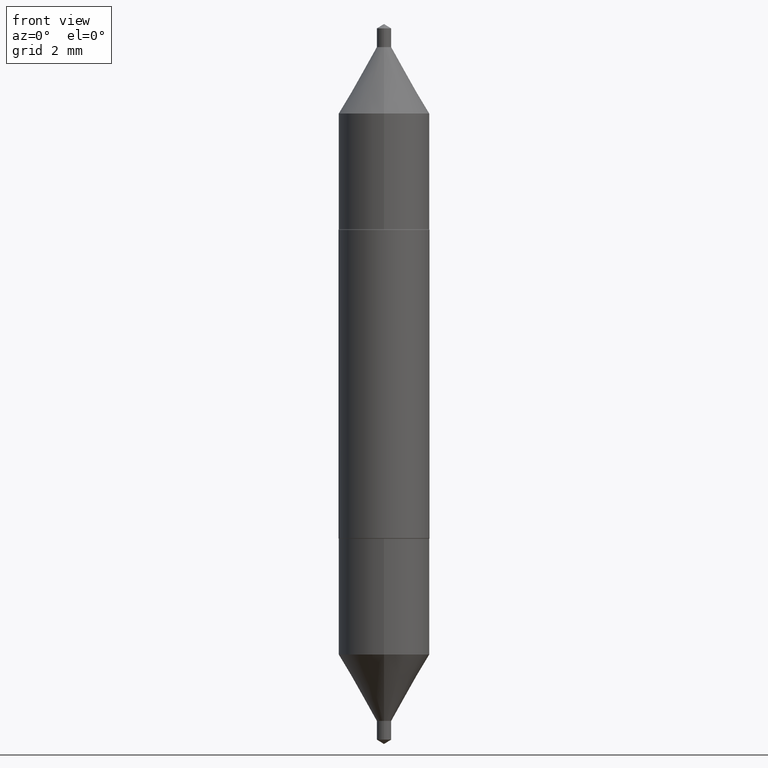
[diagram: clean part render]
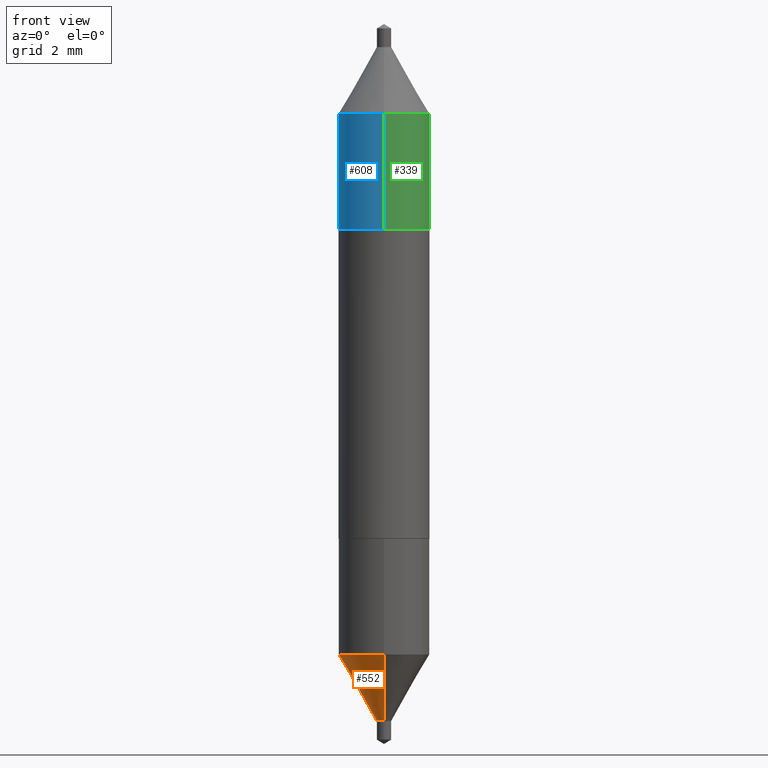
[diagram: same view with three faces highlighted in distinct colors, each labeled with its STEP entity id]
A machine part, front view with three faces highlighted in distinct colors.
Their STEP definitions:

[orange] entity #552 — the highlighted conical surface has half-angle 30 deg.
#17 = VERTEX_POINT ( 'NONE', #24 ) ;
#23 = CARTESIAN_POINT ( 'NONE',  ( 1.064338349321979233E-29, -1.682341261709817367E-15, -0.4584999999999999631 ) ) ;
#24 = CARTESIAN_POINT ( 'NONE',  ( 4.405364961712693597E-16, 0.06199999999999874362, -0.3681735503852819336 ) ) ;
#29 = CONICAL_SURFACE ( 'NONE', #102, 0.009850000000000079178, 0.5235987755982925984 ) ;
#59 = VERTEX_POINT ( 'NONE', #559 ) ;
#65 = EDGE_CURVE ( 'NONE', #364, #59, #272, .T. ) ;
#95 = CARTESIAN_POINT ( 'NONE',  ( 1.064338349321979233E-29, -1.682341261709817367E-15, -0.4584999999999999631 ) ) ;
#102 = AXIS2_PLACEMENT_3D ( 'NONE', #23, #138, #463 ) ;
#136 = DIRECTION ( 'NONE',  ( -2.215996635564548441E-29, 3.820098547916675301E-15, 1.000000000000000000 ) ) ;
#138 = DIRECTION ( 'NONE',  ( -2.215996635564548441E-29, 3.820098547916675301E-15, 1.000000000000000000 ) ) ;
#144 = LINE ( 'NONE', #353, #558 ) ;
#190 = FACE_OUTER_BOUND ( 'NONE', #549, .T. ) ;
#194 = EDGE_CURVE ( 'NONE', #17, #391, #448, .T. ) ;
#213 = ORIENTED_EDGE ( 'NONE', *, *, #402, .F. ) ;
#272 = CIRCLE ( 'NONE', #345, 0.009850000000000079178 ) ;
#275 = CARTESIAN_POINT ( 'NONE',  ( 6.998845947238172148E-17, 0.009849999999998398231, -0.4585000000000000187 ) ) ;
#288 = LINE ( 'NONE', #447, #567 ) ;
#295 = DIRECTION ( 'NONE',  ( -6.982962677686267499E-15, -1.000000000000000000, 6.933624349401627755E-15 ) ) ;
#345 = AXIS2_PLACEMENT_3D ( 'NONE', #95, #136, #295 ) ;
#352 = DIRECTION ( 'NONE',  ( -2.215996635564548441E-29, 3.820098547916675301E-15, 1.000000000000000000 ) ) ;
#353 = CARTESIAN_POINT ( 'NONE',  ( -6.878218237519963550E-17, -0.009850000000001761860, -0.4584999999999999076 ) ) ;
#354 = DIRECTION ( 'NONE',  ( -6.982962677686265922E-15, -1.000000000000000000, 3.304654831045475469E-15 ) ) ;
#364 = VERTEX_POINT ( 'NONE', #275 ) ;
#391 = VERTEX_POINT ( 'NONE', #655 ) ;
#402 = EDGE_CURVE ( 'NONE', #364, #17, #288, .T. ) ;
#439 = ORIENTED_EDGE ( 'NONE', *, *, #65, .T. ) ;
#447 = CARTESIAN_POINT ( 'NONE',  ( 6.998845947238106820E-17, 0.009849999999998398231, -0.4585000000000000187 ) ) ;
#448 = CIRCLE ( 'NONE', #493, 0.06200000000000008282 ) ;
#463 = DIRECTION ( 'NONE',  ( -6.982962677686267499E-15, -1.000000000000000000, 6.933624349401627755E-15 ) ) ;
#467 = CARTESIAN_POINT ( 'NONE',  ( 8.641752408732728571E-30, -1.337285322698163572E-15, -0.3681735503852817115 ) ) ;
#493 = AXIS2_PLACEMENT_3D ( 'NONE', #467, #352, #354 ) ;
#543 = ORIENTED_EDGE ( 'NONE', *, *, #584, .T. ) ;
#549 = EDGE_LOOP ( 'NONE', ( #213, #439, #543, #597 ) ) ;
#552 = ADVANCED_FACE ( 'NONE', ( #190 ), #29, .T. ) ;
#558 = VECTOR ( 'NONE', #564, 39.37007874015748143 ) ;
#559 = CARTESIAN_POINT ( 'NONE',  ( -6.878218237519963550E-17, -0.009850000000001761860, -0.4584999999999999076 ) ) ;
#564 = DIRECTION ( 'NONE',  ( -3.491481338843114423E-15, -0.4999999999999912292, 0.8660254037844437036 ) ) ;
#567 = VECTOR ( 'NONE', #660, 39.37007874015748143 ) ;
#584 = EDGE_CURVE ( 'NONE', #59, #391, #144, .T. ) ;
#597 = ORIENTED_EDGE ( 'NONE', *, *, #194, .F. ) ;
#655 = CARTESIAN_POINT ( 'NONE',  ( -4.329436860165404285E-16, -0.06200000000000142203, -0.3681735503852815450 ) ) ;
#660 = DIRECTION ( 'NONE',  ( 3.552713678800442554E-15, 0.4999999999999979461, 0.8660254037844398178 ) ) ;

[blue] entity #608 — the highlighted cylindrical surface (partial cylindrical patch) has radius 1.5748 mm, axis along (0, -0, -1).
#6 = DIRECTION ( 'NONE',  ( -6.982962677686265922E-15, -1.000000000000000000, 3.304654831045477047E-15 ) ) ;
#35 = CARTESIAN_POINT ( 'NONE',  ( 4.253508758618298876E-16, 0.06200000000000131101, 0.3681735503852815450 ) ) ;
#76 = ORIENTED_EDGE ( 'NONE', *, *, #251, .T. ) ;
#86 = EDGE_CURVE ( 'NONE', #278, #128, #197, .T. ) ;
#128 = VERTEX_POINT ( 'NONE', #623 ) ;
#132 = DIRECTION ( 'NONE',  ( -2.674940976805724473E-29, 3.162864129769616259E-15, 1.000000000000000000 ) ) ;
#134 = ORIENTED_EDGE ( 'NONE', *, *, #264, .T. ) ;
#135 = VERTEX_POINT ( 'NONE', #202 ) ;
#159 = LINE ( 'NONE', #269, #323 ) ;
#161 = EDGE_CURVE ( 'NONE', #128, #135, #204, .T. ) ;
#171 = AXIS2_PLACEMENT_3D ( 'NONE', #342, #132, #555 ) ;
#197 = CIRCLE ( 'NONE', #171, 0.06200000000000008282 ) ;
#202 = CARTESIAN_POINT ( 'NONE',  ( -4.329436860165537406E-16, -0.06199999999999927791, 0.2105000000000001315 ) ) ;
#204 = LINE ( 'NONE', #405, #404 ) ;
#214 = DIRECTION ( 'NONE',  ( 2.674940976805724473E-29, -3.162864129769615865E-15, -1.000000000000000000 ) ) ;
#217 = FACE_OUTER_BOUND ( 'NONE', #694, .T. ) ;
#237 = AXIS2_PLACEMENT_3D ( 'NONE', #253, #471, #631 ) ;
#249 = DIRECTION ( 'NONE',  ( 2.674940976805724473E-29, -3.162864129769615865E-15, -1.000000000000000000 ) ) ;
#251 = EDGE_CURVE ( 'NONE', #282, #135, #599, .T. ) ;
#253 = CARTESIAN_POINT ( 'NONE',  ( -5.147711837019709795E-30, 7.349568218264817959E-16, 0.2104999999999999094 ) ) ;
#264 = EDGE_CURVE ( 'NONE', #278, #282, #159, .T. ) ;
#269 = CARTESIAN_POINT ( 'NONE',  ( 4.253508758618300849E-16, 0.06200000000000078365, 0.2104999999999997151 ) ) ;
#278 = VERTEX_POINT ( 'NONE', #35 ) ;
#282 = VERTEX_POINT ( 'NONE', #372 ) ;
#323 = VECTOR ( 'NONE', #214, 39.37007874015748143 ) ;
#331 = CYLINDRICAL_SURFACE ( 'NONE', #697, 0.06200000000000004813 ) ;
#342 = CARTESIAN_POINT ( 'NONE',  ( -9.365386245860034671E-30, 1.233656838553512094E-15, 0.3681735503852817115 ) ) ;
#372 = CARTESIAN_POINT ( 'NONE',  ( 4.253508758618278662E-16, 0.06200000000000074896, 0.2104999999999997151 ) ) ;
#404 = VECTOR ( 'NONE', #249, 39.37007874015748143 ) ;
#405 = CARTESIAN_POINT ( 'NONE',  ( -4.329436860165539871E-16, -0.06199999999999931261, 0.2105000000000001315 ) ) ;
#423 = ORIENTED_EDGE ( 'NONE', *, *, #161, .F. ) ;
#436 = DIRECTION ( 'NONE',  ( 2.674940976805724473E-29, -3.162864129769616259E-15, -1.000000000000000000 ) ) ;
#471 = DIRECTION ( 'NONE',  ( -2.674940976805724473E-29, 3.162864129769616259E-15, 1.000000000000000000 ) ) ;
#555 = DIRECTION ( 'NONE',  ( -6.982962677686265922E-15, -1.000000000000000000, 3.304654831045475469E-15 ) ) ;
#599 = CIRCLE ( 'NONE', #237, 0.06200000000000001343 ) ;
#608 = ADVANCED_FACE ( 'NONE', ( #217 ), #331, .T. ) ;
#623 = CARTESIAN_POINT ( 'NONE',  ( -4.329436860165583751E-16, -0.06199999999999884770, 0.3681735503852819336 ) ) ;
#631 = DIRECTION ( 'NONE',  ( -6.982962677686265922E-15, -1.000000000000000000, 3.304654831045479019E-15 ) ) ;
#680 = ORIENTED_EDGE ( 'NONE', *, *, #86, .F. ) ;
#694 = EDGE_LOOP ( 'NONE', ( #680, #134, #76, #423 ) ) ;
#697 = AXIS2_PLACEMENT_3D ( 'NONE', #700, #436, #6 ) ;
#700 = CARTESIAN_POINT ( 'NONE',  ( -5.147711837019709795E-30, 7.349568218264817959E-16, 0.2104999999999999094 ) ) ;

[green] entity #339 — the highlighted cylindrical surface (partial cylindrical patch) has radius 1.5748 mm, axis along (0, -0, -1).
#35 = CARTESIAN_POINT ( 'NONE',  ( 4.253508758618298876E-16, 0.06200000000000131101, 0.3681735503852815450 ) ) ;
#128 = VERTEX_POINT ( 'NONE', #623 ) ;
#135 = VERTEX_POINT ( 'NONE', #202 ) ;
#159 = LINE ( 'NONE', #269, #323 ) ;
#161 = EDGE_CURVE ( 'NONE', #128, #135, #204, .T. ) ;
#191 = ORIENTED_EDGE ( 'NONE', *, *, #674, .F. ) ;
#202 = CARTESIAN_POINT ( 'NONE',  ( -4.329436860165537406E-16, -0.06199999999999927791, 0.2105000000000001315 ) ) ;
#204 = LINE ( 'NONE', #405, #404 ) ;
#214 = DIRECTION ( 'NONE',  ( 2.674940976805724473E-29, -3.162864129769615865E-15, -1.000000000000000000 ) ) ;
#216 = ORIENTED_EDGE ( 'NONE', *, *, #161, .T. ) ;
#218 = AXIS2_PLACEMENT_3D ( 'NONE', #281, #433, #651 ) ;
#219 = CIRCLE ( 'NONE', #218, 0.06200000000000008282 ) ;
#224 = DIRECTION ( 'NONE',  ( -2.674940976805724473E-29, 3.162864129769616259E-15, 1.000000000000000000 ) ) ;
#249 = DIRECTION ( 'NONE',  ( 2.674940976805724473E-29, -3.162864129769615865E-15, -1.000000000000000000 ) ) ;
#264 = EDGE_CURVE ( 'NONE', #278, #282, #159, .T. ) ;
#269 = CARTESIAN_POINT ( 'NONE',  ( 4.253508758618300849E-16, 0.06200000000000078365, 0.2104999999999997151 ) ) ;
#278 = VERTEX_POINT ( 'NONE', #35 ) ;
#281 = CARTESIAN_POINT ( 'NONE',  ( -9.365386245860034671E-30, 1.233656838553512094E-15, 0.3681735503852817115 ) ) ;
#282 = VERTEX_POINT ( 'NONE', #372 ) ;
#319 = FACE_OUTER_BOUND ( 'NONE', #609, .T. ) ;
#320 = ORIENTED_EDGE ( 'NONE', *, *, #264, .F. ) ;
#323 = VECTOR ( 'NONE', #214, 39.37007874015748143 ) ;
#335 = AXIS2_PLACEMENT_3D ( 'NONE', #338, #224, #435 ) ;
#338 = CARTESIAN_POINT ( 'NONE',  ( -5.147711837019709795E-30, 7.349568218264817959E-16, 0.2104999999999999094 ) ) ;
#339 = ADVANCED_FACE ( 'NONE', ( #319 ), #640, .T. ) ;
#372 = CARTESIAN_POINT ( 'NONE',  ( 4.253508758618278662E-16, 0.06200000000000074896, 0.2104999999999997151 ) ) ;
#404 = VECTOR ( 'NONE', #249, 39.37007874015748143 ) ;
#405 = CARTESIAN_POINT ( 'NONE',  ( -4.329436860165539871E-16, -0.06199999999999931261, 0.2105000000000001315 ) ) ;
#421 = DIRECTION ( 'NONE',  ( -6.982962677686265922E-15, -1.000000000000000000, 3.304654831045477047E-15 ) ) ;
#433 = DIRECTION ( 'NONE',  ( -2.674940976805724473E-29, 3.162864129769616259E-15, 1.000000000000000000 ) ) ;
#435 = DIRECTION ( 'NONE',  ( -6.982962677686265922E-15, -1.000000000000000000, 3.304654831045479019E-15 ) ) ;
#446 = EDGE_CURVE ( 'NONE', #135, #282, #581, .T. ) ;
#475 = AXIS2_PLACEMENT_3D ( 'NONE', #688, #699, #421 ) ;
#581 = CIRCLE ( 'NONE', #335, 0.06200000000000001343 ) ;
#609 = EDGE_LOOP ( 'NONE', ( #320, #191, #216, #625 ) ) ;
#623 = CARTESIAN_POINT ( 'NONE',  ( -4.329436860165583751E-16, -0.06199999999999884770, 0.3681735503852819336 ) ) ;
#625 = ORIENTED_EDGE ( 'NONE', *, *, #446, .T. ) ;
#640 = CYLINDRICAL_SURFACE ( 'NONE', #475, 0.06200000000000004813 ) ;
#651 = DIRECTION ( 'NONE',  ( -6.982962677686265922E-15, -1.000000000000000000, 3.304654831045475469E-15 ) ) ;
#674 = EDGE_CURVE ( 'NONE', #128, #278, #219, .T. ) ;
#688 = CARTESIAN_POINT ( 'NONE',  ( -5.147711837019709795E-30, 7.349568218264817959E-16, 0.2104999999999999094 ) ) ;
#699 = DIRECTION ( 'NONE',  ( 2.674940976805724473E-29, -3.162864129769616259E-15, -1.000000000000000000 ) ) ;